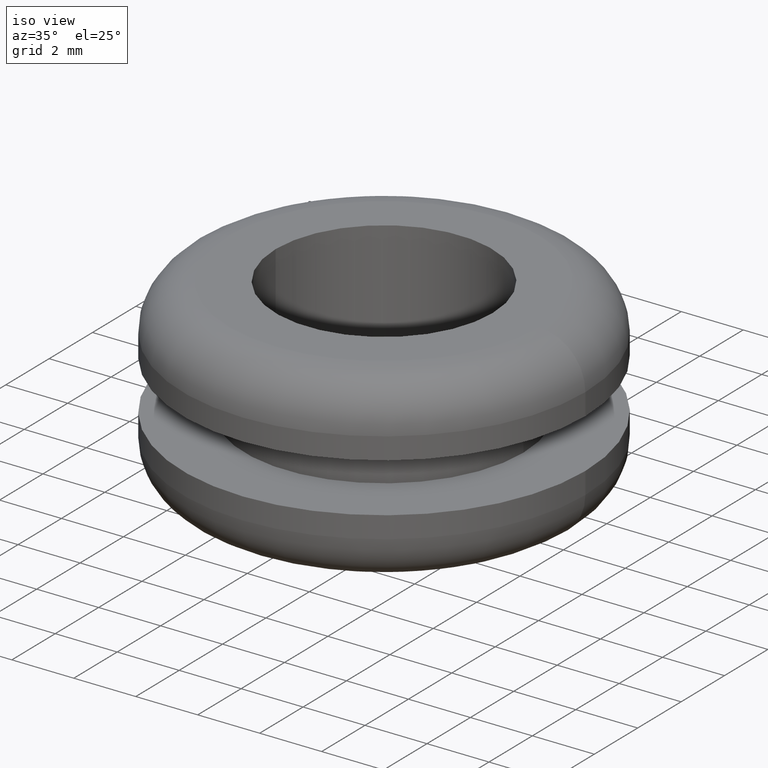
[diagram: clean part render]
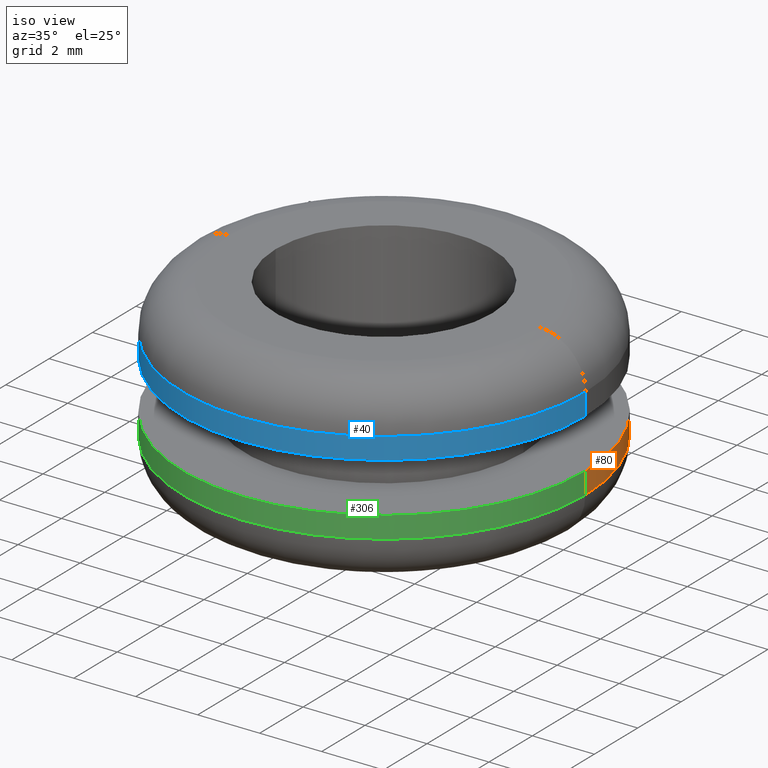
[diagram: same view with three faces highlighted in distinct colors, each labeled with its STEP entity id]
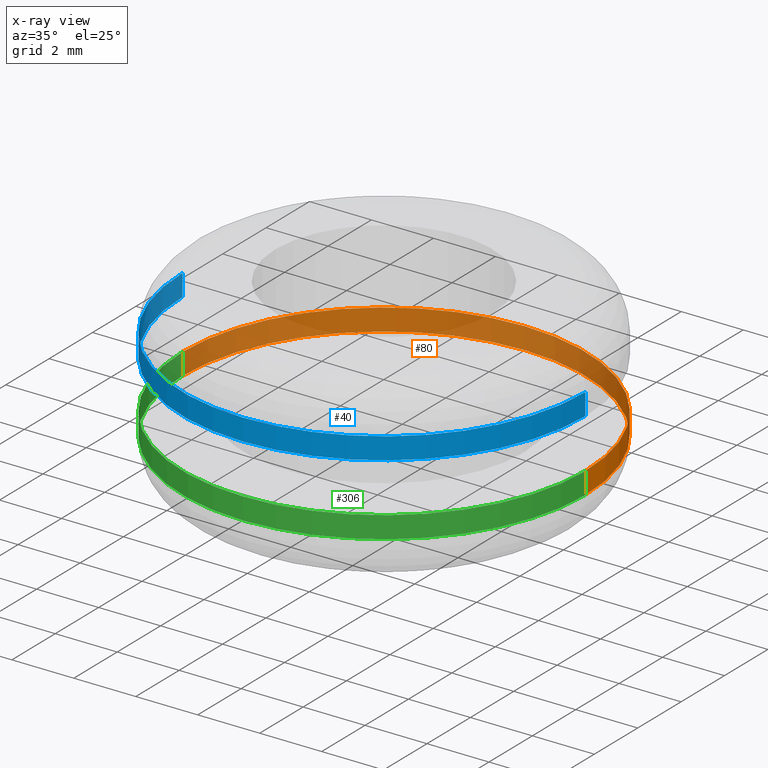
[diagram: x-ray of the same camera — body ghosted, the three highlighted faces saturated]
A machine part, iso view with three faces highlighted in distinct colors.
The next image is the same camera in x-ray (body ghosted, the three faces saturated) — at least one of them is partly hidden behind the body in this view.
Their STEP definitions:

[orange] entity #80 — the highlighted cylindrical surface (partial cylindrical patch) has radius 6.5 mm, axis along (0, 0, -1).
#24 = VERTEX_POINT ( 'NONE', #406 ) ;
#25 = DIRECTION ( 'NONE',  ( -1.000000000000000000, 0.0000000000000000000, 0.0000000000000000000 ) ) ;
#41 = AXIS2_PLACEMENT_3D ( 'NONE', #443, #259, #382 ) ;
#66 = DIRECTION ( 'NONE',  ( 0.0000000000000000000, 0.0000000000000000000, -1.000000000000000000 ) ) ;
#74 = DIRECTION ( 'NONE',  ( 0.0000000000000000000, 0.0000000000000000000, -1.000000000000000000 ) ) ;
#76 = VECTOR ( 'NONE', #190, 1000.000000000000000 ) ;
#78 = CYLINDRICAL_SURFACE ( 'NONE', #213, 6.500000000019892500 ) ;
#80 = ADVANCED_FACE ( 'NONE', ( #470 ), #78, .T. ) ;
#85 = LINE ( 'NONE', #140, #285 ) ;
#99 = CARTESIAN_POINT ( 'NONE',  ( 104.2104937854872000, 0.0000000000000000000, 139.4985603604342000 ) ) ;
#140 = CARTESIAN_POINT ( 'NONE',  ( 97.71049378546730700, 0.0000000000000000000, 0.0000000000000000000 ) ) ;
#142 = EDGE_LOOP ( 'NONE', ( #444, #361, #347, #455 ) ) ;
#165 = CIRCLE ( 'NONE', #41, 6.500000000019892500 ) ;
#167 = VERTEX_POINT ( 'NONE', #170 ) ;
#170 = CARTESIAN_POINT ( 'NONE',  ( 97.71049378546730700, 0.0000000000000000000, 140.1985603604344100 ) ) ;
#182 = CARTESIAN_POINT ( 'NONE',  ( 104.2104937854872000, 0.0000000000000000000, 0.0000000000000000000 ) ) ;
#190 = DIRECTION ( 'NONE',  ( 0.0000000000000000000, 0.0000000000000000000, -1.000000000000000000 ) ) ;
#198 = AXIS2_PLACEMENT_3D ( 'NONE', #99, #66, #25 ) ;
#213 = AXIS2_PLACEMENT_3D ( 'NONE', #182, #411, #261 ) ;
#216 = VERTEX_POINT ( 'NONE', #298 ) ;
#259 = DIRECTION ( 'NONE',  ( 0.0000000000000000000, 0.0000000000000000000, -1.000000000000000000 ) ) ;
#261 = DIRECTION ( 'NONE',  ( -1.000000000000000000, 0.0000000000000000000, 0.0000000000000000000 ) ) ;
#264 = EDGE_CURVE ( 'NONE', #167, #216, #165, .T. ) ;
#285 = VECTOR ( 'NONE', #74, 1000.000000000000000 ) ;
#298 = CARTESIAN_POINT ( 'NONE',  ( 110.7104937855071000, 7.960204194482149600E-016, 140.1985603604344100 ) ) ;
#308 = EDGE_CURVE ( 'NONE', #216, #350, #453, .T. ) ;
#334 = EDGE_CURVE ( 'NONE', #24, #350, #466, .T. ) ;
#346 = CARTESIAN_POINT ( 'NONE',  ( 110.7104937855071000, 7.960204194482153500E-016, 0.0000000000000000000 ) ) ;
#347 = ORIENTED_EDGE ( 'NONE', *, *, #334, .F. ) ;
#350 = VERTEX_POINT ( 'NONE', #446 ) ;
#358 = EDGE_CURVE ( 'NONE', #167, #24, #85, .T. ) ;
#361 = ORIENTED_EDGE ( 'NONE', *, *, #308, .T. ) ;
#382 = DIRECTION ( 'NONE',  ( -1.000000000000000000, 0.0000000000000000000, 0.0000000000000000000 ) ) ;
#406 = CARTESIAN_POINT ( 'NONE',  ( 97.71049378546730700, 0.0000000000000000000, 139.4985603604342000 ) ) ;
#411 = DIRECTION ( 'NONE',  ( 0.0000000000000000000, 0.0000000000000000000, -1.000000000000000000 ) ) ;
#443 = CARTESIAN_POINT ( 'NONE',  ( 104.2104937854872000, 0.0000000000000000000, 140.1985603604344100 ) ) ;
#444 = ORIENTED_EDGE ( 'NONE', *, *, #264, .T. ) ;
#446 = CARTESIAN_POINT ( 'NONE',  ( 110.7104937855071000, 7.960204194482154500E-016, 139.4985603604342000 ) ) ;
#453 = LINE ( 'NONE', #346, #76 ) ;
#455 = ORIENTED_EDGE ( 'NONE', *, *, #358, .F. ) ;
#466 = CIRCLE ( 'NONE', #198, 6.500000000019892500 ) ;
#470 = FACE_OUTER_BOUND ( 'NONE', #142, .T. ) ;

[blue] entity #40 — the highlighted cylindrical surface (partial cylindrical patch) has radius 6.5 mm, axis along (0, 0, -1).
#10 = VERTEX_POINT ( 'NONE', #156 ) ;
#27 = CARTESIAN_POINT ( 'NONE',  ( 97.71049378546730700, 0.0000000000000000000, 0.0000000000000000000 ) ) ;
#40 = ADVANCED_FACE ( 'NONE', ( #201 ), #88, .T. ) ;
#49 = ORIENTED_EDGE ( 'NONE', *, *, #464, .T. ) ;
#79 = VERTEX_POINT ( 'NONE', #204 ) ;
#82 = VERTEX_POINT ( 'NONE', #232 ) ;
#87 = DIRECTION ( 'NONE',  ( 0.0000000000000000000, 0.0000000000000000000, -1.000000000000000000 ) ) ;
#88 = CYLINDRICAL_SURFACE ( 'NONE', #164, 6.500000000019892500 ) ;
#114 = CARTESIAN_POINT ( 'NONE',  ( 110.7104937855071000, 7.960204194482153500E-016, 0.0000000000000000000 ) ) ;
#141 = CIRCLE ( 'NONE', #431, 6.500000000019892500 ) ;
#146 = CARTESIAN_POINT ( 'NONE',  ( 104.2104937854872000, 0.0000000000000000000, 141.7985603604342100 ) ) ;
#147 = CIRCLE ( 'NONE', #349, 6.500000000019892500 ) ;
#152 = DIRECTION ( 'NONE',  ( 0.0000000000000000000, 0.0000000000000000000, -1.000000000000000000 ) ) ;
#156 = CARTESIAN_POINT ( 'NONE',  ( 110.7104937855071000, 7.960204194482149600E-016, 142.4985603604342000 ) ) ;
#161 = ORIENTED_EDGE ( 'NONE', *, *, #324, .F. ) ;
#164 = AXIS2_PLACEMENT_3D ( 'NONE', #294, #235, #179 ) ;
#179 = DIRECTION ( 'NONE',  ( -1.000000000000000000, 0.0000000000000000000, 0.0000000000000000000 ) ) ;
#185 = EDGE_CURVE ( 'NONE', #10, #82, #141, .T. ) ;
#186 = CARTESIAN_POINT ( 'NONE',  ( 97.71049378546730700, 0.0000000000000000000, 141.7985603604342100 ) ) ;
#201 = FACE_OUTER_BOUND ( 'NONE', #258, .T. ) ;
#204 = CARTESIAN_POINT ( 'NONE',  ( 110.7104937855071000, 7.960204194482149600E-016, 141.7985603604342100 ) ) ;
#232 = CARTESIAN_POINT ( 'NONE',  ( 97.71049378546730700, 0.0000000000000000000, 142.4985603604342000 ) ) ;
#235 = DIRECTION ( 'NONE',  ( 0.0000000000000000000, 0.0000000000000000000, -1.000000000000000000 ) ) ;
#250 = DIRECTION ( 'NONE',  ( -1.000000000000000000, 0.0000000000000000000, 0.0000000000000000000 ) ) ;
#258 = EDGE_LOOP ( 'NONE', ( #161, #269, #49, #278 ) ) ;
#269 = ORIENTED_EDGE ( 'NONE', *, *, #185, .T. ) ;
#278 = ORIENTED_EDGE ( 'NONE', *, *, #418, .F. ) ;
#294 = CARTESIAN_POINT ( 'NONE',  ( 104.2104937854872000, 0.0000000000000000000, 0.0000000000000000000 ) ) ;
#305 = DIRECTION ( 'NONE',  ( -1.000000000000000000, 0.0000000000000000000, 0.0000000000000000000 ) ) ;
#324 = EDGE_CURVE ( 'NONE', #10, #79, #381, .T. ) ;
#349 = AXIS2_PLACEMENT_3D ( 'NONE', #146, #400, #305 ) ;
#352 = CARTESIAN_POINT ( 'NONE',  ( 104.2104937854872000, 0.0000000000000000000, 142.4985603604342000 ) ) ;
#367 = DIRECTION ( 'NONE',  ( 0.0000000000000000000, 0.0000000000000000000, -1.000000000000000000 ) ) ;
#381 = LINE ( 'NONE', #114, #405 ) ;
#396 = VECTOR ( 'NONE', #152, 1000.000000000000000 ) ;
#400 = DIRECTION ( 'NONE',  ( 0.0000000000000000000, 0.0000000000000000000, -1.000000000000000000 ) ) ;
#405 = VECTOR ( 'NONE', #367, 1000.000000000000000 ) ;
#415 = VERTEX_POINT ( 'NONE', #186 ) ;
#418 = EDGE_CURVE ( 'NONE', #79, #415, #147, .T. ) ;
#431 = AXIS2_PLACEMENT_3D ( 'NONE', #352, #87, #250 ) ;
#464 = EDGE_CURVE ( 'NONE', #82, #415, #468, .T. ) ;
#468 = LINE ( 'NONE', #27, #396 ) ;

[green] entity #306 — the highlighted cylindrical surface (partial cylindrical patch) has radius 6.5 mm, axis along (0, 0, -1).
#18 = EDGE_LOOP ( 'NONE', ( #231, #398, #39, #268 ) ) ;
#24 = VERTEX_POINT ( 'NONE', #406 ) ;
#39 = ORIENTED_EDGE ( 'NONE', *, *, #358, .T. ) ;
#74 = DIRECTION ( 'NONE',  ( 0.0000000000000000000, 0.0000000000000000000, -1.000000000000000000 ) ) ;
#76 = VECTOR ( 'NONE', #190, 1000.000000000000000 ) ;
#85 = LINE ( 'NONE', #140, #285 ) ;
#90 = DIRECTION ( 'NONE',  ( -1.000000000000000000, 0.0000000000000000000, 0.0000000000000000000 ) ) ;
#97 = DIRECTION ( 'NONE',  ( 0.0000000000000000000, 0.0000000000000000000, -1.000000000000000000 ) ) ;
#128 = CARTESIAN_POINT ( 'NONE',  ( 104.2104937854872000, 0.0000000000000000000, 139.4985603604342000 ) ) ;
#140 = CARTESIAN_POINT ( 'NONE',  ( 97.71049378546730700, 0.0000000000000000000, 0.0000000000000000000 ) ) ;
#148 = FACE_OUTER_BOUND ( 'NONE', #18, .T. ) ;
#149 = EDGE_CURVE ( 'NONE', #350, #24, #390, .T. ) ;
#155 = DIRECTION ( 'NONE',  ( -1.000000000000000000, 0.0000000000000000000, 0.0000000000000000000 ) ) ;
#167 = VERTEX_POINT ( 'NONE', #170 ) ;
#170 = CARTESIAN_POINT ( 'NONE',  ( 97.71049378546730700, 0.0000000000000000000, 140.1985603604344100 ) ) ;
#180 = CARTESIAN_POINT ( 'NONE',  ( 104.2104937854872000, 0.0000000000000000000, 0.0000000000000000000 ) ) ;
#187 = DIRECTION ( 'NONE',  ( -1.000000000000000000, 0.0000000000000000000, 0.0000000000000000000 ) ) ;
#190 = DIRECTION ( 'NONE',  ( 0.0000000000000000000, 0.0000000000000000000, -1.000000000000000000 ) ) ;
#200 = EDGE_CURVE ( 'NONE', #216, #167, #422, .T. ) ;
#216 = VERTEX_POINT ( 'NONE', #298 ) ;
#223 = AXIS2_PLACEMENT_3D ( 'NONE', #180, #295, #187 ) ;
#231 = ORIENTED_EDGE ( 'NONE', *, *, #308, .F. ) ;
#246 = DIRECTION ( 'NONE',  ( 0.0000000000000000000, 0.0000000000000000000, -1.000000000000000000 ) ) ;
#268 = ORIENTED_EDGE ( 'NONE', *, *, #149, .F. ) ;
#270 = AXIS2_PLACEMENT_3D ( 'NONE', #128, #246, #90 ) ;
#285 = VECTOR ( 'NONE', #74, 1000.000000000000000 ) ;
#289 = CARTESIAN_POINT ( 'NONE',  ( 104.2104937854872000, 0.0000000000000000000, 140.1985603604344100 ) ) ;
#295 = DIRECTION ( 'NONE',  ( 0.0000000000000000000, 0.0000000000000000000, -1.000000000000000000 ) ) ;
#298 = CARTESIAN_POINT ( 'NONE',  ( 110.7104937855071000, 7.960204194482149600E-016, 140.1985603604344100 ) ) ;
#306 = ADVANCED_FACE ( 'NONE', ( #148 ), #364, .T. ) ;
#308 = EDGE_CURVE ( 'NONE', #216, #350, #453, .T. ) ;
#346 = CARTESIAN_POINT ( 'NONE',  ( 110.7104937855071000, 7.960204194482153500E-016, 0.0000000000000000000 ) ) ;
#350 = VERTEX_POINT ( 'NONE', #446 ) ;
#358 = EDGE_CURVE ( 'NONE', #167, #24, #85, .T. ) ;
#364 = CYLINDRICAL_SURFACE ( 'NONE', #223, 6.500000000019892500 ) ;
#390 = CIRCLE ( 'NONE', #270, 6.500000000019892500 ) ;
#398 = ORIENTED_EDGE ( 'NONE', *, *, #200, .T. ) ;
#406 = CARTESIAN_POINT ( 'NONE',  ( 97.71049378546730700, 0.0000000000000000000, 139.4985603604342000 ) ) ;
#422 = CIRCLE ( 'NONE', #456, 6.500000000019892500 ) ;
#446 = CARTESIAN_POINT ( 'NONE',  ( 110.7104937855071000, 7.960204194482154500E-016, 139.4985603604342000 ) ) ;
#453 = LINE ( 'NONE', #346, #76 ) ;
#456 = AXIS2_PLACEMENT_3D ( 'NONE', #289, #97, #155 ) ;